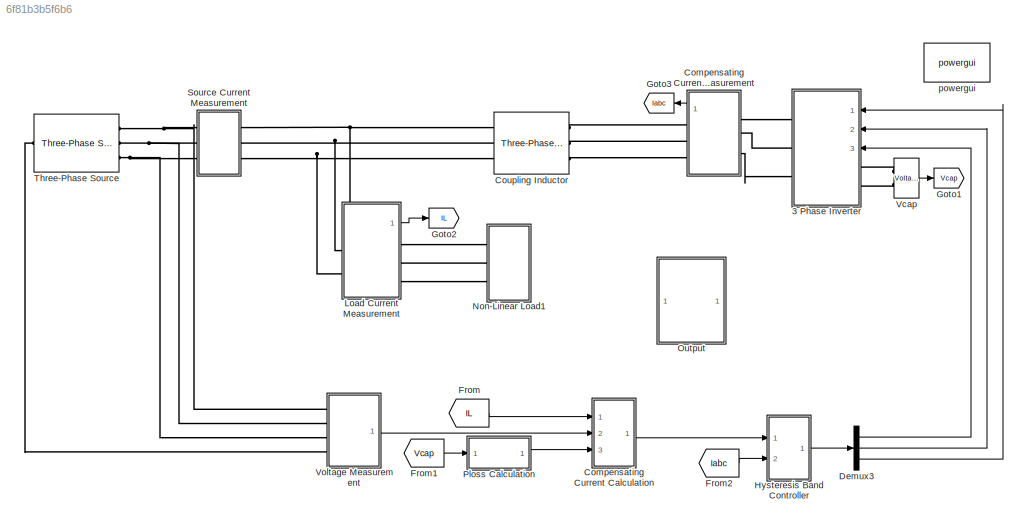
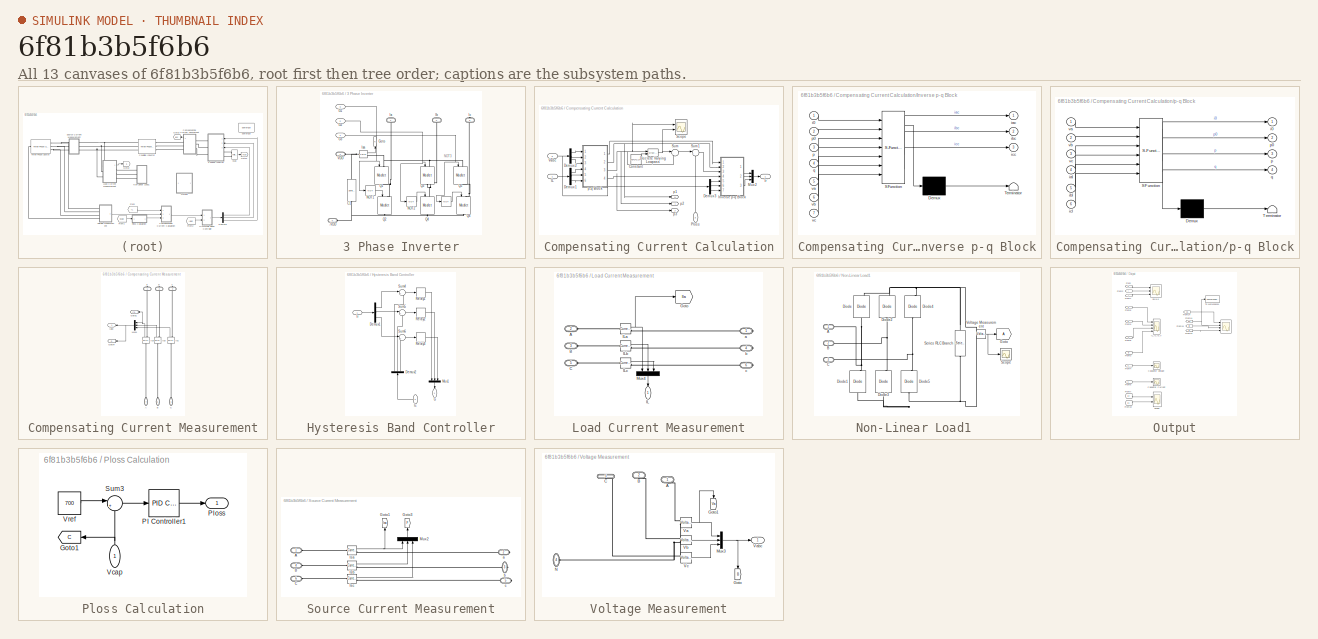
[diagram: thumbnail index - all 13 canvases of the model, root first then tree order]
MODEL slx_6f81b3b5f6b6
KIND model
CONFIG AbsTol = auto
CONFIG EnableMultiTasking = off
CONFIG FixedStep = auto
CONFIG MaxStep = auto
CONFIG MinStep = auto
CONFIG RelTol = 1e-3
CONFIG SampleTimeConstraint = Unconstrained
CONFIG Solver = VariableStepAuto
CONFIG SolverName = VariableStepAuto
CONFIG StartTime = 0.0
CONFIG StopTime = 0.5
BLOCK [SubSystem] 3 Phase Inverter
  Ports = [3, 0, 0, 0, 0, 2, 3]
  RequestExecContextInheritance = off
BLOCK [Logic] 3 Phase Inverter/ 
  AllPortsSameDT = off
  Operator = NOT
  OutDataTypeStr = boolean
  Ports = [1, 1]
BLOCK [PMIOPort] 3 Phase Inverter/-VDD
  Port = 5
  Side = Left
BLOCK [Reference] 3 Phase Inverter/C1  REF=powerlib/Elements/Series RLC Branch
  NameLocation = left
  Ports = [0, 0, 0, 0, 0, 1, 1]
  SourceBlock = powerlib/Elements/Series RLC Branch
  SourceProductBaseCode = PS
  SourceType = Series RLC Branch
BLOCK [Inport] 3 Phase Inverter/G1
  Port = 3
BLOCK [Inport] 3 Phase Inverter/G2
  Port = 2
BLOCK [Inport] 3 Phase Inverter/G3
BLOCK [Goto] 3 Phase Inverter/Goto
  GotoTag = K
  NameLocation = right
  TagVisibility = global
BLOCK [PMIOPort] 3 Phase Inverter/Ia
  NameLocation = right
  Side = Right
BLOCK [PMIOPort] 3 Phase Inverter/Ib
  NameLocation = right
  Port = 2
  Side = Right
BLOCK [PMIOPort] 3 Phase Inverter/Ic
  NameLocation = right
  Port = 3
  Side = Right
BLOCK [Reference] 3 Phase Inverter/Isa  REF=powerlib/Measurements/Current Measurement
  Ports = [0, 1, 0, 0, 0, 1, 1]
  SourceBlock = powerlib/Measurements/Current Measurement
  SourceProductBaseCode = PS
  SourceType = Current Measurement
  UserDataPersistent = on
BLOCK [Logic] 3 Phase Inverter/NOT1
  AllPortsSameDT = off
  Operator = NOT
  OutDataTypeStr = boolean
  Ports = [1, 1]
BLOCK [Logic] 3 Phase Inverter/NOT2
  AllPortsSameDT = off
  Operator = NOT
  OutDataTypeStr = boolean
  Ports = [1, 1]
BLOCK [Reference] 3 Phase Inverter/Q1  REF=powerlib/Power
Electronics/Mosfet
  NameLocation = left
  Ports = [1, 0, 0, 0, 0, 1, 1]
  SourceBlock = powerlib/Power\nElectronics/Mosfet
  SourceProductBaseCode = PS
  SourceType = Mosfet
BLOCK [Reference] 3 Phase Inverter/Q2  REF=powerlib/Power
Electronics/Mosfet
  NameLocation = left
  Ports = [1, 0, 0, 0, 0, 1, 1]
  SourceBlock = powerlib/Power\nElectronics/Mosfet
  SourceProductBaseCode = PS
  SourceType = Mosfet
BLOCK [Reference] 3 Phase Inverter/Q3  REF=powerlib/Power
Electronics/Mosfet
  NameLocation = left
  Ports = [1, 0, 0, 0, 0, 1, 1]
  SourceBlock = powerlib/Power\nElectronics/Mosfet
  SourceProductBaseCode = PS
  SourceType = Mosfet
BLOCK [Reference] 3 Phase Inverter/Q4  REF=powerlib/Power
Electronics/Mosfet
  NameLocation = left
  Ports = [1, 0, 0, 0, 0, 1, 1]
  SourceBlock = powerlib/Power\nElectronics/Mosfet
  SourceProductBaseCode = PS
  SourceType = Mosfet
BLOCK [Reference] 3 Phase Inverter/Q5  REF=powerlib/Power
Electronics/Mosfet
  NameLocation = left
  Ports = [1, 0, 0, 0, 0, 1, 1]
  SourceBlock = powerlib/Power\nElectronics/Mosfet
  SourceProductBaseCode = PS
  SourceType = Mosfet
BLOCK [Reference] 3 Phase Inverter/Q6  REF=powerlib/Power
Electronics/Mosfet
  NameLocation = left
  Ports = [1, 0, 0, 0, 0, 1, 1]
  SourceBlock = powerlib/Power\nElectronics/Mosfet
  SourceProductBaseCode = PS
  SourceType = Mosfet
BLOCK [PMIOPort] 3 Phase Inverter/VDD
  Port = 4
  Side = Left
BLOCK [SubSystem] Compensating Current Calculation
  Ports = [3, 1]
  RequestExecContextInheritance = off
BLOCK [Constant] Compensating Current Calculation/Constant
  Value = 50*2*3.14
BLOCK [Demux] Compensating Current Calculation/Demux1
  Outputs = 3
  Ports = [1, 3]
BLOCK [Demux] Compensating Current Calculation/Demux2
  Outputs = 3
  Ports = [1, 3]
BLOCK [Demux] Compensating Current Calculation/Demux3
  Outputs = 3
  Ports = [1, 3]
BLOCK [Reference] Compensating Current Calculation/Discrete Varying Lowpass  REF=cstblocks/Linear Parameter Varying/Discrete Varying Lowpass
  Ports = [2, 1]
  SourceBlock = cstblocks/Linear Parameter Varying/Discrete Varying Lowpass
  SourceProductBaseCode = CT
  SourceType = Discrete Varying Lowpass
BLOCK [Inport] Compensating Current Calculation/IL
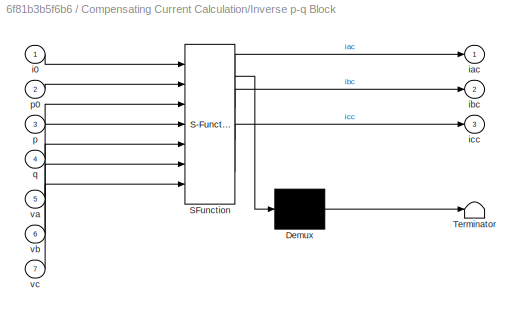
BLOCK [SubSystem] Compensating Current Calculation/Inverse p-q Block
  ErrorFcn = Stateflow.Translate.translate
  PermitHierarchicalResolution = ExplicitOnly
  Ports = [7, 3]
  RequestExecContextInheritance = off
  SFBlockType = MATLAB Function
  TreatAsAtomicUnit = on
BLOCK [Demux] Compensating Current Calculation/Inverse p-q Block/ Demux 
  Outputs = 1
  Ports = [1, 1]
BLOCK [S-Function] Compensating Current Calculation/Inverse p-q Block/ SFunction 
  EnableBusSupport = off
  FunctionName = sf_sfun
  PortCounts = [7 4]
  Ports = [7, 4]
  SFcnIsStateOwnerBlock = off
  SFunctionDeploymentMode = off
  Tag = Stateflow S-Function 1
BLOCK [Terminator] Compensating Current Calculation/Inverse p-q Block/ Terminator 
BLOCK [Inport] Compensating Current Calculation/Inverse p-q Block/i0
BLOCK [Outport] Compensating Current Calculation/Inverse p-q Block/iac
BLOCK [Outport] Compensating Current Calculation/Inverse p-q Block/ibc
  Port = 2
BLOCK [Outport] Compensating Current Calculation/Inverse p-q Block/icc
  Port = 3
BLOCK [Inport] Compensating Current Calculation/Inverse p-q Block/p
  Port = 3
BLOCK [Inport] Compensating Current Calculation/Inverse p-q Block/p0
  Port = 2
BLOCK [Inport] Compensating Current Calculation/Inverse p-q Block/q
  Port = 4
BLOCK [Inport] Compensating Current Calculation/Inverse p-q Block/va
  Port = 5
BLOCK [Inport] Compensating Current Calculation/Inverse p-q Block/vb
  Port = 6
BLOCK [Inport] Compensating Current Calculation/Inverse p-q Block/vc
  Port = 7
BLOCK [Outport] Compensating Current Calculation/Ir
BLOCK [Mux] Compensating Current Calculation/Mux2
  DisplayOption = bar
  Inputs = 3
  Ports = [3, 1]
BLOCK [Inport] Compensating Current Calculation/Ploss
  NameLocation = right
  Port = 3
BLOCK [Scope] Compensating Current Calculation/Scope
  Floating = off
  NumInputPorts = 2
  Ports = [2]
  ScopeSpecificationString = Simulink.scopes.TimeScopeBlockCfg('CurrentConfiguration', extmgr.ConfigurationSet(extmgr.Configuration('Core','General UI',true),extmgr.Configuration('Core','Source UI',true),extmgr.Configuration('Sources','WiredSimulink',true,'DataLoggingVariableName','ScopeData1'),extmgr.Configuration('Visuals','Time Domain',true,'SerializedDisplays',{struct('MinYLimReal','-951.65679','MaxYLimReal','8572.66551',...<+1469ch>
BLOCK [Sum] Compensating Current Calculation/Sum
  Inputs = |-+
  Ports = [2, 1]
BLOCK [Sum] Compensating Current Calculation/Sum1
  Inputs = |+-
  Ports = [2, 1]
BLOCK [Inport] Compensating Current Calculation/Vabc
  Port = 2
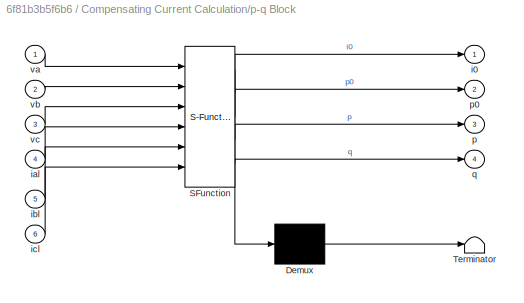
BLOCK [SubSystem] Compensating Current Calculation/p-q Block
  ErrorFcn = Stateflow.Translate.translate
  PermitHierarchicalResolution = ExplicitOnly
  Ports = [6, 4]
  RequestExecContextInheritance = off
  SFBlockType = MATLAB Function
  TreatAsAtomicUnit = on
BLOCK [Demux] Compensating Current Calculation/p-q Block/ Demux 
  Outputs = 1
  Ports = [1, 1]
BLOCK [S-Function] Compensating Current Calculation/p-q Block/ SFunction 
  EnableBusSupport = off
  FunctionName = sf_sfun
  PortCounts = [6 5]
  Ports = [6, 5]
  SFcnIsStateOwnerBlock = off
  SFunctionDeploymentMode = off
  Tag = Stateflow S-Function 2
BLOCK [Terminator] Compensating Current Calculation/p-q Block/ Terminator 
BLOCK [Outport] Compensating Current Calculation/p-q Block/i0
BLOCK [Inport] Compensating Current Calculation/p-q Block/ial
  Port = 4
BLOCK [Inport] Compensating Current Calculation/p-q Block/ibl
  Port = 5
BLOCK [Inport] Compensating Current Calculation/p-q Block/icl
  Port = 6
BLOCK [Outport] Compensating Current Calculation/p-q Block/p
  Port = 3
BLOCK [Outport] Compensating Current Calculation/p-q Block/p0
  Port = 2
BLOCK [Outport] Compensating Current Calculation/p-q Block/q
  Port = 4
BLOCK [Inport] Compensating Current Calculation/p-q Block/va
BLOCK [Inport] Compensating Current Calculation/p-q Block/vb
  Port = 2
BLOCK [Inport] Compensating Current Calculation/p-q Block/vc
  Port = 3
BLOCK [Goto] Compensating Current Calculation/p1
  GotoTag = H
  TagVisibility = global
BLOCK [Goto] Compensating Current Calculation/p2
  GotoTag = I
  TagVisibility = global
BLOCK [Goto] Compensating Current Calculation/p3
  GotoTag = J
  TagVisibility = global
BLOCK [SubSystem] Compensating Current Measurement
  Ports = [0, 1, 0, 0, 0, 3, 3]
  RequestExecContextInheritance = off
BLOCK [PMIOPort] Compensating Current Measurement/A
  NameLocation = right
  Port = 4
  Side = Left
BLOCK [PMIOPort] Compensating Current Measurement/B
  NameLocation = right
  Port = 5
  Side = Left
BLOCK [PMIOPort] Compensating Current Measurement/C
  NameLocation = right
  Port = 6
  Side = Left
BLOCK [Goto] Compensating Current Measurement/Goto1
  GotoTag = Ifa
  TagVisibility = global
BLOCK [Goto] Compensating Current Measurement/Goto4
  GotoTag = G
  TagVisibility = global
BLOCK [Outport] Compensating Current Measurement/Iabc
  NameLocation = top
BLOCK [Reference] Compensating Current Measurement/Ica  REF=powerlib/Measurements/Current Measurement
  NameLocation = right
  Ports = [0, 1, 0, 0, 0, 1, 1]
  SourceBlock = powerlib/Measurements/Current Measurement
  SourceProductBaseCode = PS
  SourceType = Current Measurement
  UserDataPersistent = on
BLOCK [Reference] Compensating Current Measurement/Icb  REF=powerlib/Measurements/Current Measurement
  NameLocation = right
  Ports = [0, 1, 0, 0, 0, 1, 1]
  SourceBlock = powerlib/Measurements/Current Measurement
  SourceProductBaseCode = PS
  SourceType = Current Measurement
  UserDataPersistent = on
BLOCK [Reference] Compensating Current Measurement/Icc  REF=powerlib/Measurements/Current Measurement
  NameLocation = right
  Ports = [0, 1, 0, 0, 0, 1, 1]
  SourceBlock = powerlib/Measurements/Current Measurement
  SourceProductBaseCode = PS
  SourceType = Current Measurement
  UserDataPersistent = on
BLOCK [Mux] Compensating Current Measurement/Mux1
  DisplayOption = bar
  Inputs = 3
  NameLocation = top
  Ports = [3, 1]
BLOCK [PMIOPort] Compensating Current Measurement/a
  NameLocation = right
  Side = Right
BLOCK [PMIOPort] Compensating Current Measurement/b
  NameLocation = right
  Port = 2
  Side = Right
BLOCK [PMIOPort] Compensating Current Measurement/c
  NameLocation = right
  Port = 3
  Side = Right
BLOCK [Reference] Coupling Inductor  REF=powerlib/Elements/Three-Phase
Series RLC Branch
  AttributesFormatString = \n
  Ports = [0, 0, 0, 0, 0, 3, 3]
  SourceBlock = powerlib/Elements/Three-Phase\nSeries RLC Branch
  SourceProductBaseCode = PS
  SourceType = Three-Phase Series RLC Branch
BLOCK [Demux] Demux3
  Outputs = 3
  Ports = [1, 3]
BLOCK [From] From
  GotoTag = IL
  TagVisibility = global
BLOCK [From] From1
  GotoTag = Vcap
  TagVisibility = global
BLOCK [From] From2
  GotoTag = Iabc
  TagVisibility = global
BLOCK [Goto] Goto1
  GotoTag = Vcap
  TagVisibility = global
BLOCK [Goto] Goto2
  GotoTag = IL
  TagVisibility = global
BLOCK [Goto] Goto3
  GotoTag = Iabc
  TagVisibility = global
BLOCK [SubSystem] Hysteresis Band Controller
  Ports = [2, 1]
  RequestExecContextInheritance = off
BLOCK [Demux] Hysteresis Band Controller/Demux1
  Outputs = 3
  Ports = [1, 3]
BLOCK [Demux] Hysteresis Band Controller/Demux2
  NameLocation = right
  Outputs = 3
  Ports = [1, 3]
BLOCK [Outport] Hysteresis Band Controller/G
  NameLocation = left
BLOCK [Inport] Hysteresis Band Controller/Ic
  NameLocation = top
  Port = 2
BLOCK [Inport] Hysteresis Band Controller/Ir
BLOCK [Mux] Hysteresis Band Controller/Mux1
  DisplayOption = bar
  Inputs = 3
  NameLocation = left
  Ports = [3, 1]
BLOCK [Relay] Hysteresis Band Controller/Relay1
  OffSwitchValue = -0.0001
  OnSwitchValue = 0.0001
  ZeroCross = off
BLOCK [Relay] Hysteresis Band Controller/Relay2
  OffSwitchValue = -0.0001
  OnSwitchValue = 0.0001
  ZeroCross = off
BLOCK [Relay] Hysteresis Band Controller/Relay3
  OffSwitchValue = -0.0001
  OnSwitchValue = 0.0001
  ZeroCross = off
BLOCK [Sum] Hysteresis Band Controller/Sum4
  Inputs = |+-
  Ports = [2, 1]
BLOCK [Sum] Hysteresis Band Controller/Sum5
  Inputs = |+-
  Ports = [2, 1]
BLOCK [Sum] Hysteresis Band Controller/Sum6
  Inputs = |+-
  Ports = [2, 1]
BLOCK [SubSystem] Load Current Measurement
  Ports = [0, 1, 0, 0, 0, 3, 3]
  RequestExecContextInheritance = off
BLOCK [PMIOPort] Load Current Measurement/A
  Port = 2
  Side = Left
BLOCK [PMIOPort] Load Current Measurement/B
  Port = 3
  Side = Left
BLOCK [PMIOPort] Load Current Measurement/C
  Port = 5
  Side = Left
BLOCK [Goto] Load Current Measurement/Goto
  GotoTag = Ila
  TagVisibility = global
BLOCK [Outport] Load Current Measurement/IL
  NameLocation = left
BLOCK [Reference] Load Current Measurement/ILa  REF=powerlib/Measurements/Current Measurement
  Ports = [0, 1, 0, 0, 0, 1, 1]
  SourceBlock = powerlib/Measurements/Current Measurement
  SourceProductBaseCode = PS
  SourceType = Current Measurement
  UserDataPersistent = on
BLOCK [Reference] Load Current Measurement/ILb  REF=powerlib/Measurements/Current Measurement
  Ports = [0, 1, 0, 0, 0, 1, 1]
  SourceBlock = powerlib/Measurements/Current Measurement
  SourceProductBaseCode = PS
  SourceType = Current Measurement
  UserDataPersistent = on
BLOCK [Reference] Load Current Measurement/ILc  REF=powerlib/Measurements/Current Measurement
  Ports = [0, 1, 0, 0, 0, 1, 1]
  SourceBlock = powerlib/Measurements/Current Measurement
  SourceProductBaseCode = PS
  SourceType = Current Measurement
  UserDataPersistent = on
BLOCK [Mux] Load Current Measurement/Mux4
  DisplayOption = bar
  Inputs = 3
  NameLocation = left
  Ports = [3, 1]
BLOCK [PMIOPort] Load Current Measurement/a
  Side = Right
BLOCK [PMIOPort] Load Current Measurement/b
  Port = 4
  Side = Right
BLOCK [PMIOPort] Load Current Measurement/c
  Port = 6
  Side = Right
BLOCK [SubSystem] Non-Linear Load1 
  Ports = [0, 0, 0, 0, 0, 3]
  RequestExecContextInheritance = off
BLOCK [PMIOPort] Non-Linear Load1 /A
  Side = Left
BLOCK [PMIOPort] Non-Linear Load1 /B
  Port = 2
  Side = Left
BLOCK [PMIOPort] Non-Linear Load1 /C
  Port = 3
  Side = Left
BLOCK [Reference] Non-Linear Load1 /Diode  REF=powerlib/Power
Electronics/Diode
  NameLocation = right
  Ports = [0, 1, 0, 0, 0, 1, 1]
  SourceBlock = powerlib/Power\nElectronics/Diode
  SourceProductBaseCode = PS
  SourceType = Diode
BLOCK [Reference] Non-Linear Load1 /Diode1  REF=powerlib/Power
Electronics/Diode
  NameLocation = right
  Ports = [0, 1, 0, 0, 0, 1, 1]
  SourceBlock = powerlib/Power\nElectronics/Diode
  SourceProductBaseCode = PS
  SourceType = Diode
BLOCK [Reference] Non-Linear Load1 /Diode2  REF=powerlib/Power
Electronics/Diode
  NameLocation = right
  Ports = [0, 1, 0, 0, 0, 1, 1]
  SourceBlock = powerlib/Power\nElectronics/Diode
  SourceProductBaseCode = PS
  SourceType = Diode
BLOCK [Reference] Non-Linear Load1 /Diode3  REF=powerlib/Power
Electronics/Diode
  NameLocation = right
  Ports = [0, 1, 0, 0, 0, 1, 1]
  SourceBlock = powerlib/Power\nElectronics/Diode
  SourceProductBaseCode = PS
  SourceType = Diode
BLOCK [Reference] Non-Linear Load1 /Diode4  REF=powerlib/Power
Electronics/Diode
  NameLocation = right
  Ports = [0, 1, 0, 0, 0, 1, 1]
  SourceBlock = powerlib/Power\nElectronics/Diode
  SourceProductBaseCode = PS
  SourceType = Diode
BLOCK [Reference] Non-Linear Load1 /Diode5  REF=powerlib/Power
Electronics/Diode
  NameLocation = right
  Ports = [0, 1, 0, 0, 0, 1, 1]
  SourceBlock = powerlib/Power\nElectronics/Diode
  SourceProductBaseCode = PS
  SourceType = Diode
BLOCK [Goto] Non-Linear Load1 /Goto
BLOCK [Scope] Non-Linear Load1 /Scope
  Floating = off
  NumInputPorts = 1
  Ports = [1]
  ScopeSpecificationString = Simulink.scopes.TimeScopeBlockCfg('CurrentConfiguration', extmgr.ConfigurationSet(extmgr.Configuration('Core','General UI',true),extmgr.Configuration('Core','Source UI',true),extmgr.Configuration('Sources','WiredSimulink',true,'DataLoggingVariableName','ScopeData1'),extmgr.Configuration('Visuals','Time Domain',true,'SerializedDisplays',{struct('MinYLimReal','478.76162','MaxYLimReal','573.56794','Y...<+1492ch>
BLOCK [Reference] Non-Linear Load1 /Series RLC Branch  REF=powerlib/Elements/Series RLC Branch
  NameLocation = left
  Ports = [0, 0, 0, 0, 0, 1, 1]
  SourceBlock = powerlib/Elements/Series RLC Branch
  SourceProductBaseCode = PS
  SourceType = Series RLC Branch
BLOCK [Reference] Non-Linear Load1 /Voltage Measurement  REF=powerlib/Measurements/Voltage Measurement
  Ports = [0, 1, 0, 0, 0, 2]
  SourceBlock = powerlib/Measurements/Voltage Measurement
  SourceProductBaseCode = PS
  SourceType = Voltage Measurement
  UserDataPersistent = on
BLOCK [SubSystem] Output
  Ports = []
  RequestExecContextInheritance = off
BLOCK [Scope] Output/ 
  Floating = off
  NumInputPorts = 4
  Ports = [4]
  ScopeSpecificationString = Simulink.scopes.TimeScopeBlockCfg('CurrentConfiguration', extmgr.ConfigurationSet(extmgr.Configuration('Core','General UI',true,'FigureColor',[0.156862745098039 0.156862745098039 0.156862745098039],'DisplayFullSourceName',true),extmgr.Configuration('Core','Source UI',true),extmgr.Configuration('Sources','WiredSimulink',true,'DataLoggingMaxPoints','20000','DataLoggingVariableName','ScopeData1','Dat...<+5904ch>
BLOCK [Scope] Output/Capacitor Current
  Floating = off
  NumInputPorts = 1
  Ports = [1]
  ScopeSpecificationString = Simulink.scopes.TimeScopeBlockCfg('CurrentConfiguration', extmgr.ConfigurationSet(extmgr.Configuration('Core','General UI',true,'FigureColor',[0.156862745098039 0.156862745098039 0.156862745098039]),extmgr.Configuration('Core','Source UI',true),extmgr.Configuration('Sources','WiredSimulink',true,'DataLoggingVariableName','ScopeData1','DataLoggingSaveFormat','StructureWithTime','DataLoggingDecimati...<+2798ch>
BLOCK [Scope] Output/Capacitor Voltage
  Floating = off
  NumInputPorts = 1
  Ports = [1]
  ScopeSpecificationString = Simulink.scopes.TimeScopeBlockCfg('CurrentConfiguration', extmgr.ConfigurationSet(extmgr.Configuration('Core','General UI',true,'FigureColor',[0.156862745098039 0.156862745098039 0.156862745098039]),extmgr.Configuration('Core','Source UI',true),extmgr.Configuration('Sources','WiredSimulink',true,'DataLoggingVariableName','ScopeData3','DataLoggingSaveFormat','StructureWithTime','DataLoggingDecimati...<+2810ch>
BLOCK [From] Output/From
  GotoTag = H
  TagVisibility = global
BLOCK [From] Output/From1
  GotoTag = J
  TagVisibility = global
BLOCK [From] Output/From10
  GotoTag = ILs
BLOCK [From] Output/From11
  GotoTag = Isa
  TagVisibility = global
BLOCK [From] Output/From12
  GotoTag = Ila
  TagVisibility = global
BLOCK [From] Output/From13
  GotoTag = Ifa
  TagVisibility = global
BLOCK [From] Output/From14
  GotoTag = Va
  TagVisibility = global
BLOCK [From] Output/From2
  GotoTag = I
  TagVisibility = global
BLOCK [From] Output/From3
  GotoTag = B
  IconDisplay = Signal name
  TagVisibility = global
BLOCK [From] Output/From4
  GotoTag = C
  NameLocation = top
  TagVisibility = global
BLOCK [From] Output/From5
  GotoTag = K
  TagVisibility = global
BLOCK [From] Output/From6
  GotoTag = IL
  TagVisibility = global
BLOCK [From] Output/From7
  GotoTag = ILn
BLOCK [From] Output/From8
  GotoTag = F
  TagVisibility = global
BLOCK [From] Output/From9
  GotoTag = G
  TagVisibility = global
BLOCK [Scope] Output/IL,Ic,Is,V
  Floating = off
  NumInputPorts = 4
  Ports = [4]
  ScopeSpecificationString = Simulink.scopes.TimeScopeBlockCfg('CurrentConfiguration', extmgr.ConfigurationSet(extmgr.Configuration('Core','General UI',true,'FigureColor',[0 0 0]),extmgr.Configuration('Core','Source UI',true),extmgr.Configuration('Sources','WiredSimulink',true,'DataLoggingMaxPoints','4e+5','DataLoggingSaveFormat','StructureWithTime','DataLoggingDecimation','1','DataLoggingDecimateData',true,'DataLogging',true...<+6171ch>
BLOCK [Scope] Output/Scope
  Floating = off
  NumInputPorts = 2
  Ports = [2]
  ScopeSpecificationString = Simulink.scopes.TimeScopeBlockCfg('CurrentConfiguration', extmgr.ConfigurationSet(extmgr.Configuration('Core','General UI',true,'FigureColor',[0.156862745098039 0.156862745098039 0.156862745098039]),extmgr.Configuration('Core','Source UI',true),extmgr.Configuration('Sources','WiredSimulink',true,'DataLoggingVariableName','ScopeData1','DataLoggingSaveFormat','StructureWithTime','DataLoggingDecimati...<+4014ch>
BLOCK [ToWorkspace] Output/To Workspace1
  FixptAsFi = on
  MaxDataPoints = inf
  Ports = [1]
  SampleTime = -1
  SaveFormat = Structure With Time
  VariableName = IS
BLOCK [Scope] Output/p0,p,q
  Floating = off
  NumInputPorts = 3
  Ports = [3]
  ScopeSpecificationString = Simulink.scopes.TimeScopeBlockCfg('CurrentConfiguration', extmgr.ConfigurationSet(extmgr.Configuration('Core','General UI',true,'FigureColor',[0.156862745098039 0.156862745098039 0.156862745098039]),extmgr.Configuration('Core','Source UI',true),extmgr.Configuration('Sources','WiredSimulink',true,'DataLoggingMaxPoints','20000','DataLoggingVariableName','ScopeData4','DataLoggingSaveFormat','Structur...<+5340ch>
BLOCK [SubSystem] Ploss Calculation
  Ports = [1, 1]
  RequestExecContextInheritance = off
BLOCK [Goto] Ploss Calculation/Goto1
  GotoTag = C
  NameLocation = top
  TagVisibility = global
BLOCK [Reference] Ploss Calculation/PI Controller1  REF=simulink/Continuous/PID Controller
  Ports = [1, 1]
  SourceBlock = simulink/Continuous/PID Controller
  SourceProductBaseCode = SL
  SourceType = PID 1dof
BLOCK [Outport] Ploss Calculation/Ploss
BLOCK [Sum] Ploss Calculation/Sum3
  Inputs = |+-
  Ports = [2, 1]
BLOCK [Inport] Ploss Calculation/Vcap
  NameLocation = left
BLOCK [Constant] Ploss Calculation/Vref
  Value = 700
BLOCK [SubSystem] Source Current Measurement
  Ports = [0, 0, 0, 0, 0, 3, 3]
  RequestExecContextInheritance = off
BLOCK [PMIOPort] Source Current Measurement/A
  Side = Left
BLOCK [PMIOPort] Source Current Measurement/B
  Port = 4
  Side = Left
BLOCK [PMIOPort] Source Current Measurement/C
  Port = 6
  Side = Left
BLOCK [Goto] Source Current Measurement/Goto1
  GotoTag = Isa
  NameLocation = right
  TagVisibility = global
BLOCK [Goto] Source Current Measurement/Goto3
  GotoTag = F
  NameLocation = right
  TagVisibility = global
BLOCK [Reference] Source Current Measurement/Isa  REF=powerlib/Measurements/Current Measurement
  Ports = [0, 1, 0, 0, 0, 1, 1]
  SourceBlock = powerlib/Measurements/Current Measurement
  SourceProductBaseCode = PS
  SourceType = Current Measurement
  UserDataPersistent = on
BLOCK [Reference] Source Current Measurement/Isb  REF=powerlib/Measurements/Current Measurement
  Ports = [0, 1, 0, 0, 0, 1, 1]
  SourceBlock = powerlib/Measurements/Current Measurement
  SourceProductBaseCode = PS
  SourceType = Current Measurement
  UserDataPersistent = on
BLOCK [Reference] Source Current Measurement/Isc  REF=powerlib/Measurements/Current Measurement
  Ports = [0, 1, 0, 0, 0, 1, 1]
  SourceBlock = powerlib/Measurements/Current Measurement
  SourceProductBaseCode = PS
  SourceType = Current Measurement
  UserDataPersistent = on
BLOCK [Mux] Source Current Measurement/Mux2
  DisplayOption = bar
  Inputs = 3
  NameLocation = right
  Ports = [3, 1]
BLOCK [PMIOPort] Source Current Measurement/a
  Port = 2
  Side = Right
BLOCK [PMIOPort] Source Current Measurement/b
  Port = 3
  Side = Right
BLOCK [PMIOPort] Source Current Measurement/c
  Port = 5
  Side = Right
BLOCK [Reference] Three-Phase Source  REF=powerlib/Electrical
Sources/Three-Phase Source
  Ports = [0, 0, 0, 0, 0, 1, 3]
  SourceBlock = powerlib/Electrical\nSources/Three-Phase Source
  SourceProductBaseCode = PS
  SourceType = Three-Phase Source
BLOCK [Reference] Vcap  REF=powerlib/Measurements/Voltage Measurement
  Ports = [0, 1, 0, 0, 0, 2]
  SourceBlock = powerlib/Measurements/Voltage Measurement
  SourceProductBaseCode = PS
  SourceType = Voltage Measurement
  UserDataPersistent = on
BLOCK [SubSystem] Voltage Measurement
  Ports = [0, 1, 0, 0, 0, 4]
  RequestExecContextInheritance = off
BLOCK [PMIOPort] Voltage Measurement/A
  NameLocation = right
  Side = Left
BLOCK [PMIOPort] Voltage Measurement/B
  NameLocation = right
  Port = 2
  Side = Left
BLOCK [PMIOPort] Voltage Measurement/C
  NameLocation = right
  Port = 3
  Side = Left
BLOCK [Goto] Voltage Measurement/Goto
  GotoTag = B
  NameLocation = left
  TagVisibility = global
BLOCK [Goto] Voltage Measurement/Goto1
  GotoTag = Va
  NameLocation = left
  TagVisibility = global
BLOCK [Mux] Voltage Measurement/Mux3
  DisplayOption = bar
  Inputs = 3
  Ports = [3, 1]
BLOCK [PMIOPort] Voltage Measurement/N
  NameLocation = top
  Port = 4
  Side = Left
BLOCK [Reference] Voltage Measurement/Va  REF=powerlib/Measurements/Voltage Measurement
  Ports = [0, 1, 0, 0, 0, 2]
  SourceBlock = powerlib/Measurements/Voltage Measurement
  SourceProductBaseCode = PS
  SourceType = Voltage Measurement
  UserDataPersistent = on
BLOCK [Outport] Voltage Measurement/Vabc
BLOCK [Reference] Voltage Measurement/Vb  REF=powerlib/Measurements/Voltage Measurement
  Ports = [0, 1, 0, 0, 0, 2]
  SourceBlock = powerlib/Measurements/Voltage Measurement
  SourceProductBaseCode = PS
  SourceType = Voltage Measurement
  UserDataPersistent = on
BLOCK [Reference] Voltage Measurement/Vc  REF=powerlib/Measurements/Voltage Measurement
  Ports = [0, 1, 0, 0, 0, 2]
  SourceBlock = powerlib/Measurements/Voltage Measurement
  SourceProductBaseCode = PS
  SourceType = Voltage Measurement
  UserDataPersistent = on
BLOCK [Reference] powergui  REF=powerlib/powergui
  Ports = []
  Priority = 1
  SourceBlock = powerlib/powergui
  SourceProductBaseCode = PS
  SourceType = PSB option menu block
ANNOTATION 3 Phase Inverter: NOT3
LINE 3 Phase Inverter/ :1 -> 3 Phase Inverter/Q6:1
NET 3 Phase Inverter/G1:1 -> 3 Phase Inverter/NOT1:1, 3 Phase Inverter/Q1:1
NET 3 Phase Inverter/G2:1 -> 3 Phase Inverter/NOT2:1, 3 Phase Inverter/Q3:1
NET 3 Phase Inverter/G3:1 -> 3 Phase Inverter/ :1, 3 Phase Inverter/Q5:1
LINE 3 Phase Inverter/Isa:1 -> 3 Phase Inverter/Goto:1
LINE 3 Phase Inverter/NOT1:1 -> 3 Phase Inverter/Q2:1
LINE 3 Phase Inverter/NOT2:1 -> 3 Phase Inverter/Q4:1
LINE Compensating Current Calculation/Constant:1 -> Compensating Current Calculation/Discrete Varying Lowpass:2
LINE Compensating Current Calculation/Demux1:1 -> Compensating Current Calculation/p-q Block:4
LINE Compensating Current Calculation/Demux1:2 -> Compensating Current Calculation/p-q Block:5
LINE Compensating Current Calculation/Demux1:3 -> Compensating Current Calculation/p-q Block:6
LINE Compensating Current Calculation/Demux2:1 -> Compensating Current Calculation/p-q Block:1
LINE Compensating Current Calculation/Demux2:2 -> Compensating Current Calculation/p-q Block:2
LINE Compensating Current Calculation/Demux2:3 -> Compensating Current Calculation/p-q Block:3
LINE Compensating Current Calculation/Demux3:1 -> Compensating Current Calculation/Inverse p-q Block:5
LINE Compensating Current Calculation/Demux3:2 -> Compensating Current Calculation/Inverse p-q Block:6
LINE Compensating Current Calculation/Demux3:3 -> Compensating Current Calculation/Inverse p-q Block:7
NET Compensating Current Calculation/Discrete Varying Lowpass:1 -> Compensating Current Calculation/Scope:2, Compensating Current Calculation/Sum:1
LINE Compensating Current Calculation/IL:1 -> Compensating Current Calculation/Demux1:1
LINE Compensating Current Calculation/Inverse p-q Block:1 -> Compensating Current Calculation/Mux2:1
LINE Compensating Current Calculation/Inverse p-q Block:2 -> Compensating Current Calculation/Mux2:2
LINE Compensating Current Calculation/Inverse p-q Block:3 -> Compensating Current Calculation/Mux2:3
LINE Compensating Current Calculation/Mux2:1 -> Compensating Current Calculation/Ir:1
LINE Compensating Current Calculation/Ploss:1 -> Compensating Current Calculation/Sum1:2
LINE Compensating Current Calculation/Sum1:1 -> Compensating Current Calculation/Inverse p-q Block:3
LINE Compensating Current Calculation/Sum:1 -> Compensating Current Calculation/Sum1:1
NET Compensating Current Calculation/Vabc:1 -> Compensating Current Calculation/Demux2:1, Compensating Current Calculation/Demux3:1
LINE Compensating Current Calculation/p-q Block:1 -> Compensating Current Calculation/Inverse p-q Block:1
NET Compensating Current Calculation/p-q Block:2 -> Compensating Current Calculation/Inverse p-q Block:2, Compensating Current Calculation/p1:1
NET Compensating Current Calculation/p-q Block:3 -> Compensating Current Calculation/Discrete Varying Lowpass:1, Compensating Current Calculation/Scope:1, Compensating Current Calculation/Sum:2, Compensating Current Calculation/p2:1
NET Compensating Current Calculation/p-q Block:4 -> Compensating Current Calculation/Inverse p-q Block:4, Compensating Current Calculation/p3:1
LINE Compensating Current Calculation:1 -> Hysteresis Band Controller:1
NET Compensating Current Measurement/Ica:1 -> Compensating Current Measurement/Goto1:1, Compensating Current Measurement/Mux1:1
LINE Compensating Current Measurement/Icb:1 -> Compensating Current Measurement/Mux1:2
LINE Compensating Current Measurement/Icc:1 -> Compensating Current Measurement/Mux1:3
NET Compensating Current Measurement/Mux1:1 -> Compensating Current Measurement/Goto4:1, Compensating Current Measurement/Iabc:1
LINE Compensating Current Measurement:1 -> Goto3:1
LINE Demux3:1 -> 3 Phase Inverter:3
LINE Demux3:2 -> 3 Phase Inverter:2
LINE Demux3:3 -> 3 Phase Inverter:1
LINE From1:1 -> Ploss Calculation:1
LINE From2:1 -> Hysteresis Band Controller:2
LINE From:1 -> Compensating Current Calculation:1
LINE Hysteresis Band Controller/Demux1:1 -> Hysteresis Band Controller/Sum4:1
LINE Hysteresis Band Controller/Demux1:2 -> Hysteresis Band Controller/Sum5:1
LINE Hysteresis Band Controller/Demux1:3 -> Hysteresis Band Controller/Sum6:1
LINE Hysteresis Band Controller/Demux2:1 -> Hysteresis Band Controller/Sum4:2
LINE Hysteresis Band Controller/Demux2:2 -> Hysteresis Band Controller/Sum5:2
LINE Hysteresis Band Controller/Demux2:3 -> Hysteresis Band Controller/Sum6:2
LINE Hysteresis Band Controller/Ic:1 -> Hysteresis Band Controller/Demux2:1
LINE Hysteresis Band Controller/Ir:1 -> Hysteresis Band Controller/Demux1:1
LINE Hysteresis Band Controller/Mux1:1 -> Hysteresis Band Controller/G:1
LINE Hysteresis Band Controller/Relay1:1 -> Hysteresis Band Controller/Mux1:1
LINE Hysteresis Band Controller/Relay2:1 -> Hysteresis Band Controller/Mux1:2
LINE Hysteresis Band Controller/Relay3:1 -> Hysteresis Band Controller/Mux1:3
LINE Hysteresis Band Controller/Sum4:1 -> Hysteresis Band Controller/Relay1:1
LINE Hysteresis Band Controller/Sum5:1 -> Hysteresis Band Controller/Relay2:1
LINE Hysteresis Band Controller/Sum6:1 -> Hysteresis Band Controller/Relay3:1
LINE Hysteresis Band Controller:1 -> Demux3:1
NET Load Current Measurement/ILa:1 -> Load Current Measurement/Goto:1, Load Current Measurement/Mux4:1
LINE Load Current Measurement/ILb:1 -> Load Current Measurement/Mux4:2
LINE Load Current Measurement/ILc:1 -> Load Current Measurement/Mux4:3
LINE Load Current Measurement/Mux4:1 -> Load Current Measurement/IL:1
LINE Load Current Measurement:1 -> Goto2:1
NET Non-Linear Load1 /Voltage Measurement:1 -> Non-Linear Load1 /Goto:1, Non-Linear Load1 /Scope:1
LINE Output/From10:1 -> Output/Scope:2
NET Output/From11:1 -> Output/ :2, Output/To Workspace1:1
LINE Output/From12:1 -> Output/ :4
LINE Output/From13:1 -> Output/ :3
LINE Output/From14:1 -> Output/ :1
LINE Output/From1:1 -> Output/p0,p,q:3
LINE Output/From2:1 -> Output/p0,p,q:2
LINE Output/From3:1 -> Output/IL,Ic,Is,V:4
LINE Output/From4:1 -> Output/Capacitor Voltage:1
LINE Output/From5:1 -> Output/Capacitor Current:1
LINE Output/From6:1 -> Output/IL,Ic,Is,V:1
LINE Output/From7:1 -> Output/Scope:1
LINE Output/From8:1 -> Output/IL,Ic,Is,V:3
LINE Output/From9:1 -> Output/IL,Ic,Is,V:2
LINE Output/From:1 -> Output/p0,p,q:1
LINE Ploss Calculation/PI Controller1:1 -> Ploss Calculation/Ploss:1
LINE Ploss Calculation/Sum3:1 -> Ploss Calculation/PI Controller1:1
NET Ploss Calculation/Vcap:1 -> Ploss Calculation/Goto1:1, Ploss Calculation/Sum3:2
LINE Ploss Calculation/Vref:1 -> Ploss Calculation/Sum3:1
LINE Ploss Calculation:1 -> Compensating Current Calculation:3
NET Source Current Measurement/Isa:1 -> Source Current Measurement/Goto1:1, Source Current Measurement/Mux2:1
LINE Source Current Measurement/Isb:1 -> Source Current Measurement/Mux2:2
LINE Source Current Measurement/Isc:1 -> Source Current Measurement/Mux2:3
LINE Source Current Measurement/Mux2:1 -> Source Current Measurement/Goto3:1
LINE Vcap:1 -> Goto1:1
NET Voltage Measurement/Mux3:1 -> Voltage Measurement/Goto:1, Voltage Measurement/Vabc:1
NET Voltage Measurement/Va:1 -> Voltage Measurement/Goto1:1, Voltage Measurement/Mux3:1
LINE Voltage Measurement/Vb:1 -> Voltage Measurement/Mux3:2
LINE Voltage Measurement/Vc:1 -> Voltage Measurement/Mux3:3
LINE Voltage Measurement:1 -> Compensating Current Calculation:2
PNET net1: 3 Phase Inverter/-VDD:RConn1 -- 3 Phase Inverter/C1:RConn1 -- 3 Phase Inverter/Q2:RConn1 -- 3 Phase Inverter/Q4:RConn1 -- 3 Phase Inverter/Q6:RConn1
PNET net2: 3 Phase Inverter/C1:LConn1 -- 3 Phase Inverter/Isa:LConn1 -- 3 Phase Inverter/VDD:RConn1
PNET net3: 3 Phase Inverter/Ia:RConn1 -- 3 Phase Inverter/Q1:RConn1 -- 3 Phase Inverter/Q2:LConn1
PNET net4: 3 Phase Inverter/Ib:RConn1 -- 3 Phase Inverter/Q3:RConn1 -- 3 Phase Inverter/Q4:LConn1
PNET net5: 3 Phase Inverter/Ic:RConn1 -- 3 Phase Inverter/Q5:RConn1 -- 3 Phase Inverter/Q6:LConn1
PNET net6: 3 Phase Inverter/Isa:RConn1 -- 3 Phase Inverter/Q1:LConn1 -- 3 Phase Inverter/Q3:LConn1 -- 3 Phase Inverter/Q5:LConn1
PLINE 3 Phase Inverter:LConn1 -- Vcap:LConn1
PLINE 3 Phase Inverter:LConn2 -- Vcap:LConn2
PLINE 3 Phase Inverter:RConn1 -- Compensating Current Measurement:LConn1
PLINE 3 Phase Inverter:RConn2 -- Compensating Current Measurement:LConn2
PLINE 3 Phase Inverter:RConn3 -- Compensating Current Measurement:LConn3
PLINE Compensating Current Measurement/A:RConn1 -- Compensating Current Measurement/Ica:LConn1
PLINE Compensating Current Measurement/B:RConn1 -- Compensating Current Measurement/Icb:LConn1
PLINE Compensating Current Measurement/C:RConn1 -- Compensating Current Measurement/Icc:LConn1
PLINE Compensating Current Measurement/Ica:RConn1 -- Compensating Current Measurement/a:RConn1
PLINE Compensating Current Measurement/Icb:RConn1 -- Compensating Current Measurement/b:RConn1
PLINE Compensating Current Measurement/Icc:RConn1 -- Compensating Current Measurement/c:RConn1
PLINE Compensating Current Measurement:RConn1 -- Coupling Inductor:RConn1
PLINE Compensating Current Measurement:RConn2 -- Coupling Inductor:RConn2
PLINE Compensating Current Measurement:RConn3 -- Coupling Inductor:RConn3
PNET net7: Coupling Inductor:LConn1 -- Load Current Measurement:LConn1 -- Source Current Measurement:RConn1
PNET net8: Coupling Inductor:LConn2 -- Load Current Measurement:LConn2 -- Source Current Measurement:RConn2
PNET net9: Coupling Inductor:LConn3 -- Load Current Measurement:LConn3 -- Source Current Measurement:RConn3
PLINE Load Current Measurement/A:RConn1 -- Load Current Measurement/ILa:LConn1
PLINE Load Current Measurement/B:RConn1 -- Load Current Measurement/ILb:LConn1
PLINE Load Current Measurement/C:RConn1 -- Load Current Measurement/ILc:LConn1
PLINE Load Current Measurement/ILa:RConn1 -- Load Current Measurement/a:RConn1
PLINE Load Current Measurement/ILb:RConn1 -- Load Current Measurement/b:RConn1
PLINE Load Current Measurement/ILc:RConn1 -- Load Current Measurement/c:RConn1
PLINE Load Current Measurement:RConn1 -- Non-Linear Load1 :LConn1
PLINE Load Current Measurement:RConn2 -- Non-Linear Load1 :LConn2
PLINE Load Current Measurement:RConn3 -- Non-Linear Load1 :LConn3
PNET net10: Non-Linear Load1 /A:RConn1 -- Non-Linear Load1 /Diode1:RConn1 -- Non-Linear Load1 /Diode:LConn1
PNET net11: Non-Linear Load1 /B:RConn1 -- Non-Linear Load1 /Diode2:LConn1 -- Non-Linear Load1 /Diode3:RConn1
PNET net12: Non-Linear Load1 /C:RConn1 -- Non-Linear Load1 /Diode4:LConn1 -- Non-Linear Load1 /Diode5:RConn1
PNET net13: Non-Linear Load1 /Diode1:LConn1 -- Non-Linear Load1 /Diode3:LConn1 -- Non-Linear Load1 /Diode5:LConn1 -- Non-Linear Load1 /Series RLC Branch:RConn1 -- Non-Linear Load1 /Voltage Measurement:LConn2
PNET net14: Non-Linear Load1 /Diode2:RConn1 -- Non-Linear Load1 /Diode4:RConn1 -- Non-Linear Load1 /Diode:RConn1 -- Non-Linear Load1 /Series RLC Branch:LConn1 -- Non-Linear Load1 /Voltage Measurement:LConn1
PLINE Source Current Measurement/A:RConn1 -- Source Current Measurement/Isa:LConn1
PLINE Source Current Measurement/B:RConn1 -- Source Current Measurement/Isb:LConn1
PLINE Source Current Measurement/C:RConn1 -- Source Current Measurement/Isc:LConn1
PLINE Source Current Measurement/Isa:RConn1 -- Source Current Measurement/a:RConn1
PLINE Source Current Measurement/Isb:RConn1 -- Source Current Measurement/b:RConn1
PLINE Source Current Measurement/Isc:RConn1 -- Source Current Measurement/c:RConn1
PNET net15: Source Current Measurement:LConn1 -- Three-Phase Source:RConn1 -- Voltage Measurement:LConn1
PNET net16: Source Current Measurement:LConn2 -- Three-Phase Source:RConn2 -- Voltage Measurement:LConn2
PNET net17: Source Current Measurement:LConn3 -- Three-Phase Source:RConn3 -- Voltage Measurement:LConn3
PLINE Three-Phase Source:LConn1 -- Voltage Measurement:LConn4
PLINE Voltage Measurement/A:RConn1 -- Voltage Measurement/Va:LConn1
PLINE Voltage Measurement/B:RConn1 -- Voltage Measurement/Vb:LConn1
PLINE Voltage Measurement/C:RConn1 -- Voltage Measurement/Vc:LConn1
PNET net18: Voltage Measurement/N:RConn1 -- Voltage Measurement/Va:LConn2 -- Voltage Measurement/Vb:LConn2 -- Voltage Measurement/Vc:LConn2
note: NET lines group one-source signal fan-out (src -> all destinations, sorted); 1:1 wires keep LINE; PNET lines group multi-terminal physical nets as a canonical sorted terminal list (undirected conserving connections); 2-terminal nets keep the pairwise PLINE form
CHART Compensating
Current
Calculation/Inverse p-q Block states=1 transitions=1
  STATE_LABEL 'eML_blk_kernel()'
  STATE_LABEL 'SCRIPT:\nfunction [iac,ibc,icc]= fcn(i0,p0,p,q,va,vb,vc)\n%#codegen\nv_zero=(va+vb+vc)/sqrt(3);\nv_alpha=(va-vb/2-vc/2)*sqrt(2/3);\nv_beta=(vb-vc)/sqrt(2);\ni_zero=i0;\ni_alpha=(v_alpha.*p+v_beta.*q)/(v_alpha.^2+v_beta.^2);\ni_beta=(v_beta.*p-v_alpha.*q)/(v_alpha.^2+v_beta.^2);\niac=sqrt(2/3)*(i_zero/sqrt(2)+i_alpha);\nibc=sqrt(2/3)*(i_zero./sqrt(2)-i_alpha/2+sqrt(3)*i_beta/2);\nicc=sqrt(2/3)*(i_zero./sqrt(2...<+30ch>'
CHART Compensating
Current
Calculation/p-q Block states=1 transitions=1
  STATE_LABEL 'eML_blk_kernel()'
  STATE_LABEL 'SCRIPT:\nfunction [i0,p0,p,q]= fcn(va,vb,vc,ial,ibl,icl)\n%#codegen\nv_zero=(va+vb+vc)/sqrt(3);\nv_alpha=(va-vb/2-vc/2)*sqrt(2/3);\nv_beta=(vb-vc)/sqrt(2);\nil_zero=(ial+ibl+icl)/sqrt(3);\nil_alpha=(ial-ibl/2-icl/2)*sqrt(2/3);\nil_beta=(ibl-icl)/sqrt(2);\ni0=il_zero;\np0=v_zero.*il_zero;\np=v_alpha.*il_alpha+v_beta.*il_beta;\nq=v_beta.*il_alpha-v_alpha.*il_beta;\n'
CHART  states=0 transitions=0
CHART  states=0 transitions=0
